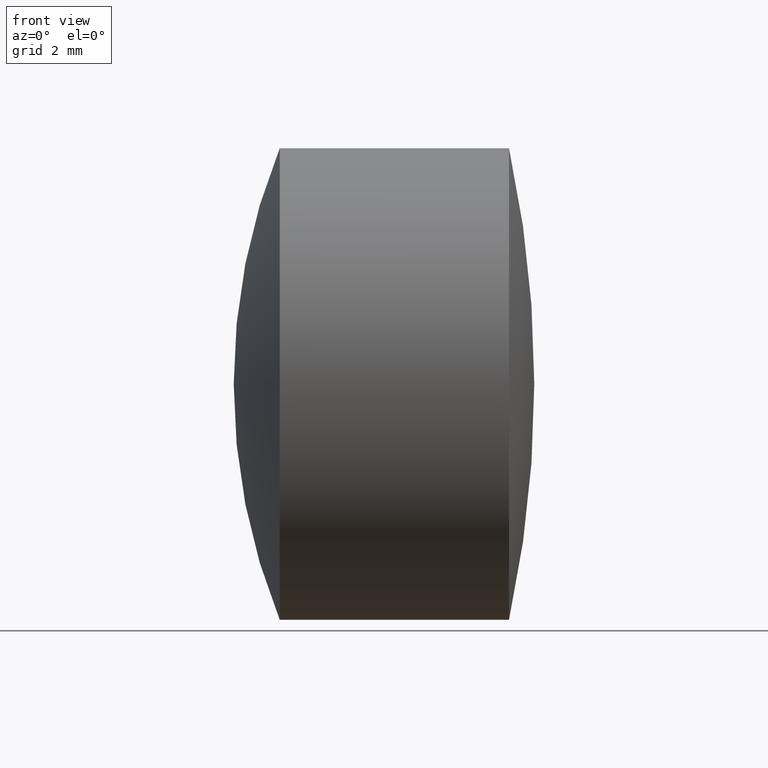
[diagram: clean part render]
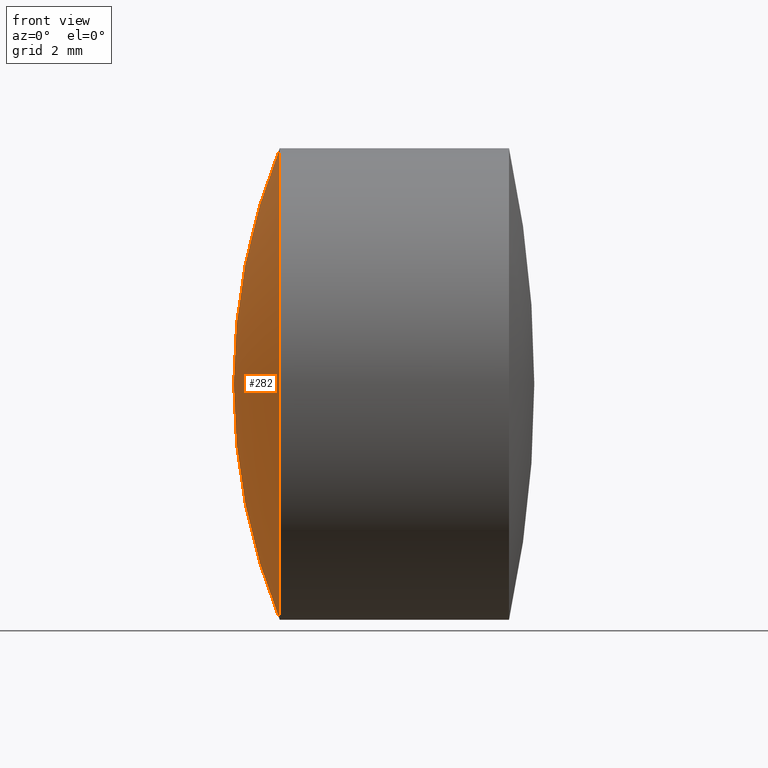
[diagram: same view with one face highlighted and labeled with its STEP entity id]
A machine part, front view. The second image highlights one B-rep face of the part: STEP entity #282.
In plain terms, the highlighted spherical surface has radius 10.642 mm.
Its self-contained STEP definition (entity closure, byte-faithful):
#9 = DIRECTION ( 'NONE',  ( -0.0000000000000000000, 1.000000000000000000, 1.224646799147353200E-016 ) ) ;
#23 = ORIENTED_EDGE ( 'NONE', *, *, #265, .F. ) ;
#24 = DIRECTION ( 'NONE',  ( -1.000000000000000000, -0.0000000000000000000, -0.0000000000000000000 ) ) ;
#48 = CIRCLE ( 'NONE', #271, 10.64199999999999900 ) ;
#50 = VERTEX_POINT ( 'NONE', #301 ) ;
#57 = EDGE_LOOP ( 'NONE', ( #23, #262, #277 ) ) ;
#77 = CARTESIAN_POINT ( 'NONE',  ( -1.962826851007154500, 0.0000000000000000000, 3.999999999999998200 ) ) ;
#84 = DIRECTION ( 'NONE',  ( 0.0000000000000000000, -1.224646799147353000E-016, 1.000000000000000000 ) ) ;
#90 = EDGE_CURVE ( 'NONE', #222, #315, #100, .T. ) ;
#93 = AXIS2_PLACEMENT_3D ( 'NONE', #144, #114, #192 ) ;
#100 = CIRCLE ( 'NONE', #346, 10.64199999999999900 ) ;
#114 = DIRECTION ( 'NONE',  ( 0.0000000000000000000, 1.000000000000000000, 0.0000000000000000000 ) ) ;
#139 = DIRECTION ( 'NONE',  ( 0.0000000000000000000, -1.000000000000000000, 0.0000000000000000000 ) ) ;
#144 = CARTESIAN_POINT ( 'NONE',  ( 7.898824329195884200, 0.0000000000000000000, -4.193262327932864000E-018 ) ) ;
#175 = CIRCLE ( 'NONE', #177, 4.000000000000000000 ) ;
#177 = AXIS2_PLACEMENT_3D ( 'NONE', #258, #24, #191 ) ;
#191 = DIRECTION ( 'NONE',  ( 0.0000000000000000000, 0.0000000000000000000, 1.000000000000000000 ) ) ;
#192 = DIRECTION ( 'NONE',  ( 0.0000000000000000000, 0.0000000000000000000, 1.000000000000000000 ) ) ;
#205 = CARTESIAN_POINT ( 'NONE',  ( -2.743175670804114000, 0.0000000000000000000, 6.474412994983736900E-016 ) ) ;
#222 = VERTEX_POINT ( 'NONE', #77 ) ;
#258 = CARTESIAN_POINT ( 'NONE',  ( -1.962826851007154500, 0.0000000000000000000, 0.0000000000000000000 ) ) ;
#262 = ORIENTED_EDGE ( 'NONE', *, *, #314, .T. ) ;
#265 = EDGE_CURVE ( 'NONE', #50, #315, #48, .T. ) ;
#266 = CARTESIAN_POINT ( 'NONE',  ( 7.898824329195884200, 0.0000000000000000000, -4.193262327932864000E-018 ) ) ;
#271 = AXIS2_PLACEMENT_3D ( 'NONE', #266, #9, #84 ) ;
#277 = ORIENTED_EDGE ( 'NONE', *, *, #90, .T. ) ;
#281 = FACE_OUTER_BOUND ( 'NONE', #57, .T. ) ;
#282 = ADVANCED_FACE ( 'NONE', ( #281 ), #338, .T. ) ;
#301 = CARTESIAN_POINT ( 'NONE',  ( -1.962826851007154500, 4.898587196589411800E-016, -3.999999999999998200 ) ) ;
#314 = EDGE_CURVE ( 'NONE', #50, #222, #175, .T. ) ;
#315 = VERTEX_POINT ( 'NONE', #205 ) ;
#324 = CARTESIAN_POINT ( 'NONE',  ( 7.898824329195884200, 0.0000000000000000000, -4.193262327932864000E-018 ) ) ;
#328 = DIRECTION ( 'NONE',  ( 0.0000000000000000000, 0.0000000000000000000, -1.000000000000000000 ) ) ;
#338 = SPHERICAL_SURFACE ( 'NONE', #93, 10.64199999999999900 ) ;
#346 = AXIS2_PLACEMENT_3D ( 'NONE', #324, #139, #328 ) ;